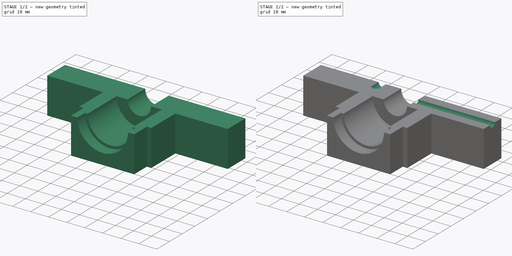
[diagram: build sequence overview — one tinted view per stage of 2, left to right]
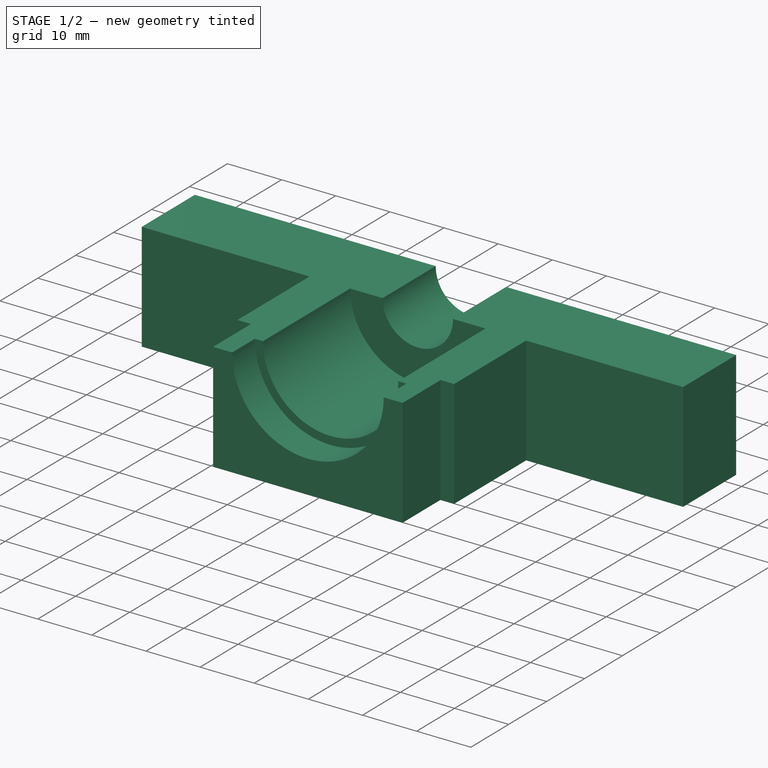
[diagram: stage 1 of 2 — iso view after this stage's code; geometry added in this stage tinted green]
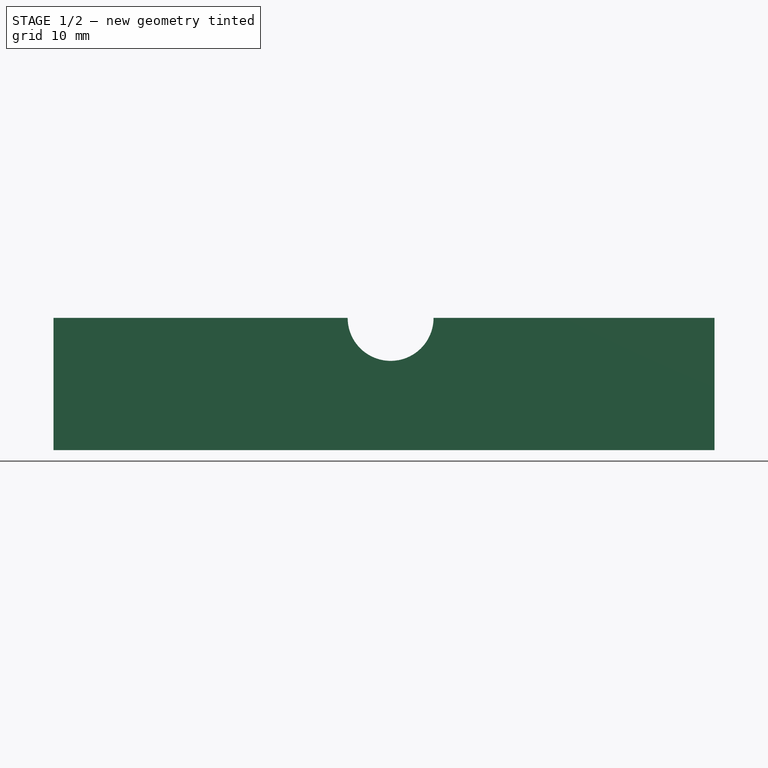
[diagram: stage 1 of 2 — front view after this stage's code; geometry added in this stage tinted green]
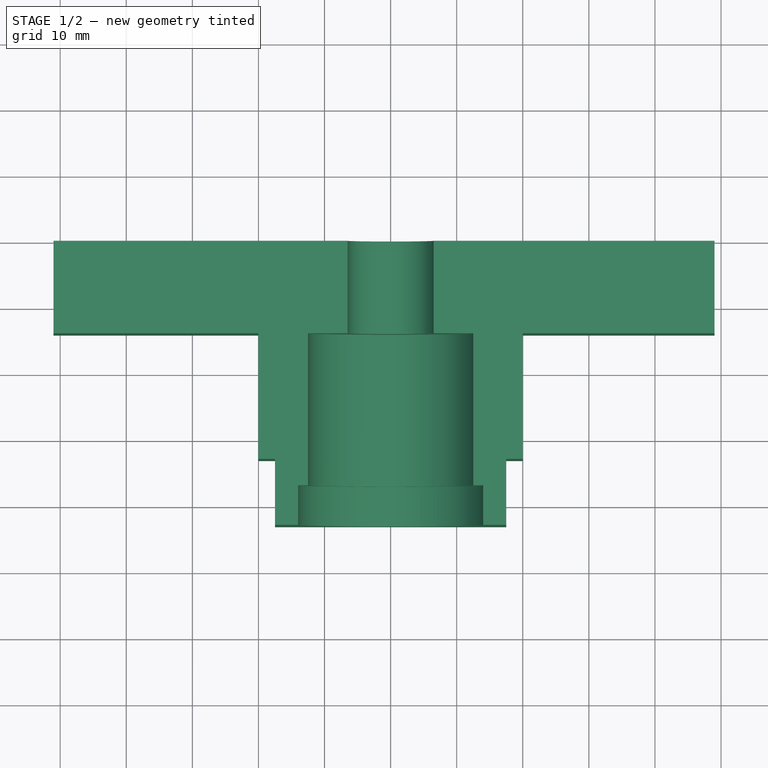
[diagram: stage 1 of 2 — top view after this stage's code; geometry added in this stage tinted green]
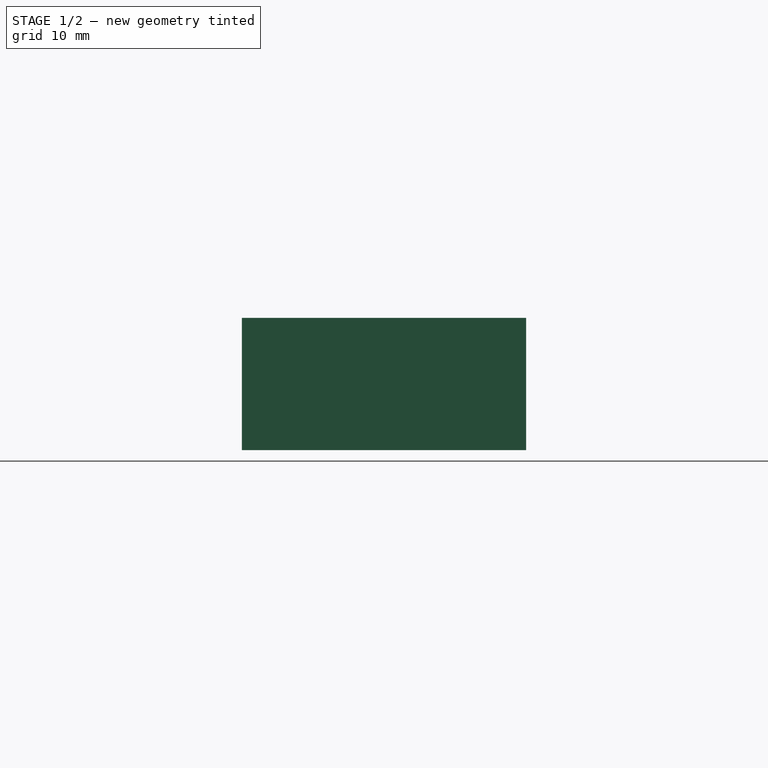
[diagram: stage 1 of 2 — right view after this stage's code; geometry added in this stage tinted green]
FCSTD DOCUMENT  (FreeCAD 0.18R14796 (Git))
Label: Exercise 2D -10
License: All rights reserved
LicenseURL: http://en.wikipedia.org/wiki/All_rights_reserved
objects: Sketcher::SketchObject×4, PartDesign::Groove×2, PartDesign::Pad×1, PartDesign::Pocket×1, PartDesign::Line×1, PartDesign::Body×1
note: 14 computed .brp shape members not serialized (recipe doc carries the construction recipe); baked Part::Feature solids carry a one-line shape summary decoded from their .brp

FEATURE [Sketcher::SketchObject] Sketch
  MapMode = 5
  Support = -> [XY_Plane]
  sketch-geometry (15):
    g0: LineSegment StartX=-51 StartY=0 StartZ=0 EndX=49 EndY=0 EndZ=0
    g1: LineSegment StartX=49 StartY=0 StartZ=0 EndX=49 EndY=-14 EndZ=0
    g2: LineSegment StartX=49 StartY=-14 StartZ=0 EndX=20 EndY=-14 EndZ=0
    g3: LineSegment StartX=20 StartY=-14 StartZ=0 EndX=20 EndY=-33 EndZ=0
    g4: LineSegment StartX=20 StartY=-33 StartZ=0 EndX=17.5 EndY=-33 EndZ=0
    g5: LineSegment StartX=17.5 StartY=-33 StartZ=0 EndX=17.5 EndY=-43 EndZ=0
    g6: LineSegment StartX=17.5 StartY=-43 StartZ=0 EndX=-17.5 EndY=-43 EndZ=0
    g7: LineSegment StartX=-17.5 StartY=-43 StartZ=0 EndX=-17.5 EndY=-33 EndZ=0
    g8: LineSegment StartX=-17.5 StartY=-33 StartZ=0 EndX=-20 EndY=-33 EndZ=0
    g9: LineSegment StartX=-20 StartY=-33 StartZ=0 EndX=-20 EndY=-14 EndZ=0
    g10: LineSegment StartX=-20 StartY=-14 StartZ=0 EndX=-51 EndY=-14 EndZ=0
    g11: LineSegment StartX=-51 StartY=-14 StartZ=0 EndX=-51 EndY=0 EndZ=0
    g12: LineSegment [constr] StartX=-20 StartY=-14 StartZ=0 EndX=20 EndY=-14 EndZ=0
    g13: LineSegment [constr] StartX=0 StartY=0 StartZ=0 EndX=0 EndY=-43 EndZ=0
    g14: LineSegment [constr] StartX=-17.5 StartY=-33 StartZ=0 EndX=17.5 EndY=-33 EndZ=0
  constraints (41):
    c: Horizontal(g0)
    c: Coincident(g0,g1)
    c: Vertical(g1)
    c: Coincident(g1,g2)
    c: Horizontal(g2)
    c: Coincident(g2,g3)
    c: Vertical(g3)
    c: Coincident(g3,g4)
    c: Horizontal(g4)
    c: Coincident(g4,g5)
    c: Vertical(g5)
    c: Coincident(g5,g6)
    c: Horizontal(g6)
    c: Coincident(g6,g7)
    c: Vertical(g7)
    c: Coincident(g7,g8)
    c: Horizontal(g8)
    c: Coincident(g8,g9)
    c: Vertical(g9)
    c: Coincident(g9,g10)
    c: Horizontal(g10)
    c: Coincident(g10,g11)
    c: Vertical(g11)
    c: Coincident(g0,g11)
    c: DistanceX(g0,g0) = 100
    c: Coincident(g12,g9)
    c: Coincident(g12,g2)
    c: Horizontal(g12)
    c: DistanceY(g11,g11) = 14
    c: DistanceX(g2,g2) = 29
    c: DistanceX(g8,g3) = 40
    c: DistanceX(g6,g6) = 35
    c: PointOnObject(g13,g0)
    c: Symmetric(g6,g6,g13)
    c: Symmetric(g2,g9,g13)
    c: Coincident(g13,g-1)
    c: Coincident(g14,g7)
    c: Coincident(g14,g4)
    c: Horizontal(g14)
    c: DistanceY(g3,g3) = 19
    c: DistanceY(g5,g5) = 10
FEATURE [PartDesign::Pad] Pad
  Length = 20
  Length2 = 100
  Profile = -> Sketch
  Refine = true
  Reversed = true
  Type = 0
FEATURE [Sketcher::SketchObject] Sketch001
  MapMode = 5
  Support = -> [XY_Plane]
  expr: Constraints[22] = 13 / 2
  expr: Constraints[21] = 25 / 2
  expr: Constraints[20] = 28 / 2
  sketch-geometry (8):
    g0: LineSegment StartX=0 StartY=0 StartZ=0 EndX=6.5 EndY=0 EndZ=0
    g1: LineSegment StartX=6.5 StartY=0 StartZ=0 EndX=6.5 EndY=-14 EndZ=0
    g2: LineSegment StartX=6.5 StartY=-14 StartZ=0 EndX=12.5 EndY=-14 EndZ=0
    g3: LineSegment StartX=12.5 StartY=-14 StartZ=0 EndX=12.5 EndY=-37 EndZ=0
    g4: LineSegment StartX=12.5 StartY=-37 StartZ=0 EndX=14 EndY=-37 EndZ=0
    g5: LineSegment StartX=14 StartY=-37 StartZ=0 EndX=14 EndY=-45 EndZ=0
    g6: LineSegment StartX=14 StartY=-45 StartZ=0 EndX=0 EndY=-45 EndZ=0
    g7: LineSegment StartX=0 StartY=-45 StartZ=0 EndX=0 EndY=0 EndZ=0
  constraints (23):
    c: Coincident(g-1,g0)
    c: Horizontal(g0)
    c: Coincident(g0,g1)
    c: Vertical(g1)
    c: Coincident(g1,g2)
    c: Horizontal(g2)
    c: Coincident(g2,g3)
    c: Vertical(g3)
    c: Coincident(g3,g4)
    c: Horizontal(g4)
    c: Coincident(g4,g5)
    c: Vertical(g5)
    c: Coincident(g5,g6)
    c: PointOnObject(g6,g-2)
    c: Horizontal(g6)
    c: Coincident(g6,g7)
    c: Coincident(g7,g0)
    c: DistanceY(g5,g5) = 8
    c: DistanceY(g3,g3) = 23
    c: DistanceY(g1,g1) = 14
    c: DistanceX(g6,g6) = 14
    c: DistanceX(g2) = 12.5
    c: DistanceX(g1) = 6.5
FEATURE [PartDesign::Groove] Groove
  Angle = 360
  Axis = (0,1,0)
  Base = (0,0,0)
  BaseFeature = -> Pad
  Profile = -> Sketch001
  ReferenceAxis = -> Sketch001 [V_Axis]
  Refine = true
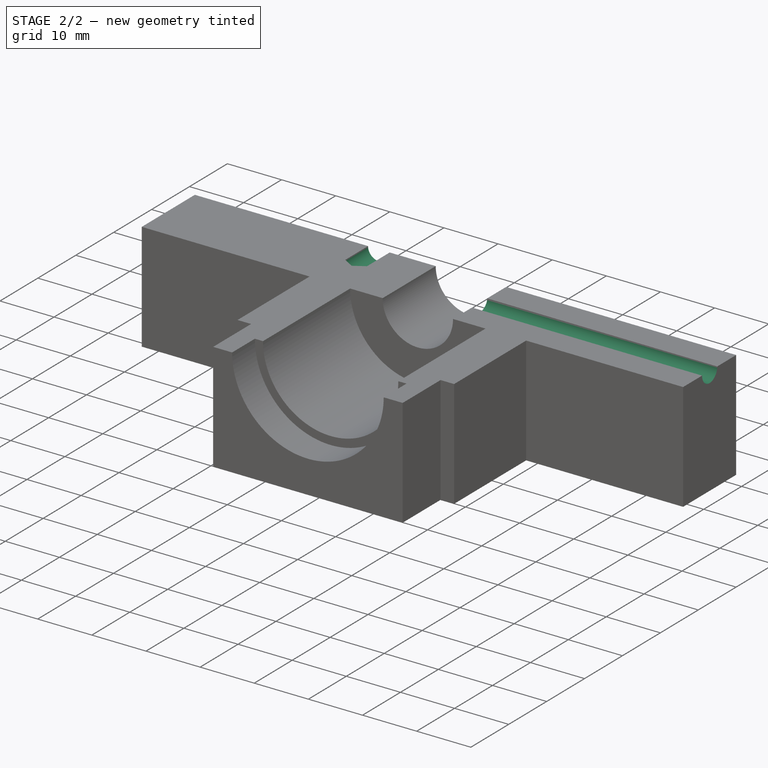
[diagram: stage 2 of 2 — iso view after this stage's code; geometry added in this stage tinted green]
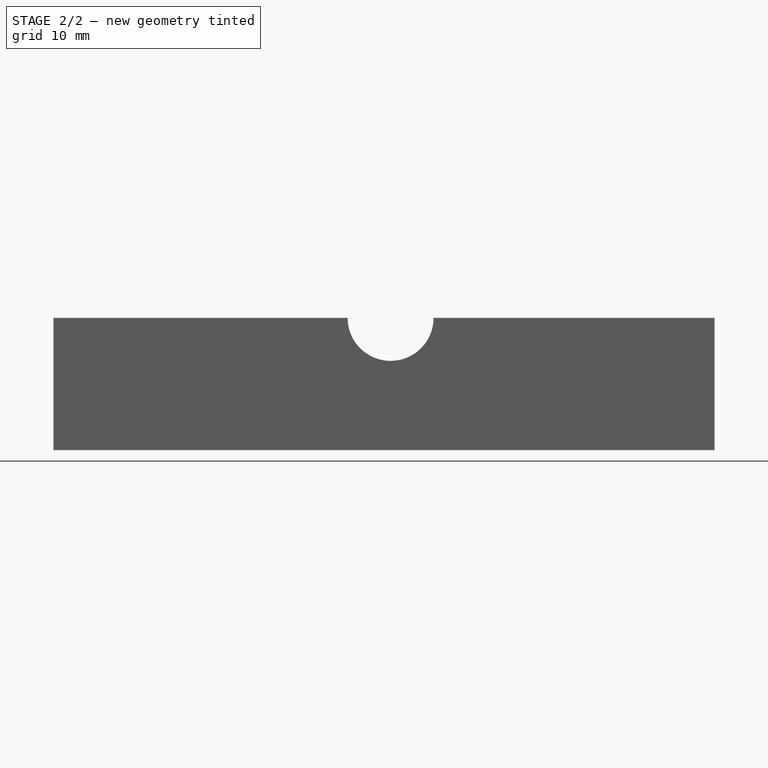
[diagram: stage 2 of 2 — front view after this stage's code; geometry added in this stage tinted green]
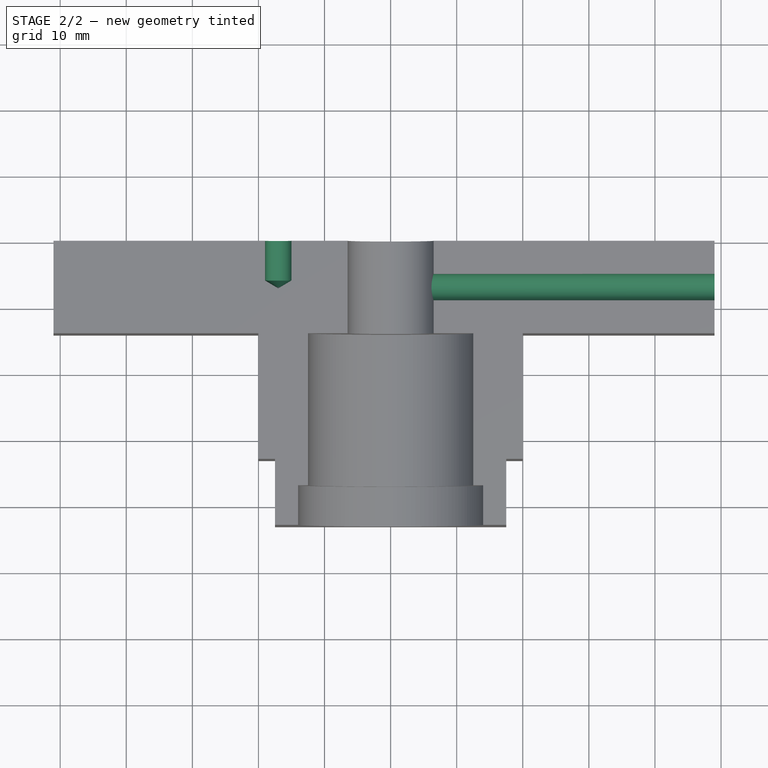
[diagram: stage 2 of 2 — top view after this stage's code; geometry added in this stage tinted green]
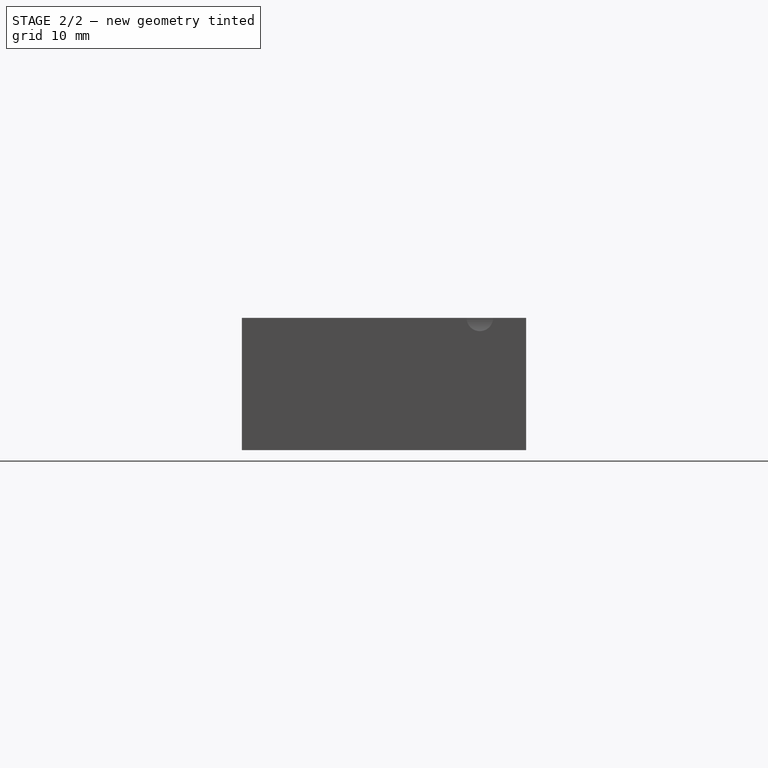
[diagram: stage 2 of 2 — right view after this stage's code; geometry added in this stage tinted green]
FEATURE [Sketcher::SketchObject] Sketch002
  MapMode = 5
  Placement = pos=(0,0,0) rot=(0.57735,0.57735,0.57735;2.0944rad)
  Support = -> [YZ_Plane]
  sketch-geometry (1):
    g0: Circle CenterX=-7 CenterY=0 CenterZ=0 NormalX=0 NormalY=0 NormalZ=1 AngleXU=0 Radius=2
  constraints (3):
    c: PointOnObject(g0,g-1)
    c: DistanceX(g0,g-1) = 7
    c: Diameter(g0) = 4
FEATURE [PartDesign::Pocket] Pocket
  BaseFeature = -> Groove
  Length = 50
  Length2 = 100
  Profile = -> Sketch002
  Refine = true
  Reversed = true
  Type = 0
FEATURE [PartDesign::Line] DatumLine
  AttacherType = Attacher::AttachEngineLine
  AttachmentOffset = pos=(-33,0,0) rot=(0,0,1;0rad)
  MapMode = 29
  Placement = pos=(-18,0,0) rot=(0,0.707107,0.707107;3.14159rad)
  Support = -> [Sketch]
FEATURE [Sketcher::SketchObject] Sketch003
  AttachmentOffset = pos=(-17,0,0) rot=(0,0,1;0rad)
  MapMode = 5
  Placement = pos=(-17,0,0) rot=(0,0,1;0rad)
  Support = -> [XY_Plane]
  expr: Constraints[10] = 118 / 2
  sketch-geometry (4):
    g0: LineSegment StartX=0 StartY=0 StartZ=0 EndX=2 EndY=0 EndZ=0
    g1: LineSegment StartX=2 StartY=0 StartZ=0 EndX=2 EndY=-6 EndZ=0
    g2: LineSegment StartX=2 StartY=-6 StartZ=0 EndX=0 EndY=-7.20172 EndZ=0
    g3: LineSegment StartX=0 StartY=-7.20172 StartZ=0 EndX=0 EndY=0 EndZ=0
  constraints (11):
    c: Horizontal(g0)
    c: Coincident(g0,g1)
    c: Vertical(g1)
    c: Coincident(g1,g2)
    c: PointOnObject(g2,g-2)
    c: Coincident(g0,g3)
    c: DistanceX(g0,g0) = 2
    c: DistanceY(g1,g1) = 6
    c: Coincident(g0,g-1)
    c: Coincident(g3,g2)
    c: Angle(g2,g3) = 1.02974
FEATURE [PartDesign::Groove] Groove001
  Angle = 360
  Axis = (0,1,0)
  Base = (-17,0,0)
  BaseFeature = -> Pocket
  Profile = -> Sketch003
  ReferenceAxis = -> Sketch003 [V_Axis]
  Refine = true
FEATURE [PartDesign::Body] Body
  Group = -> [Sketch,Pad,Sketch001,Groove,Sketch002,Pocket,DatumLine,Sketch003,Groove001]
  Origin = -> Origin
  Tip = -> Groove001
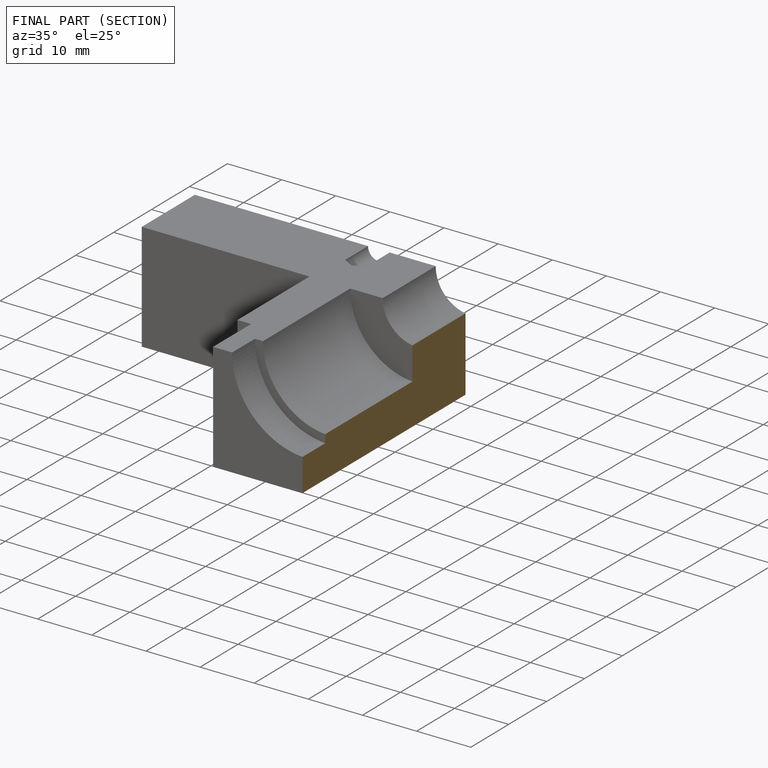
[diagram: finished part — half-section view (interior)]
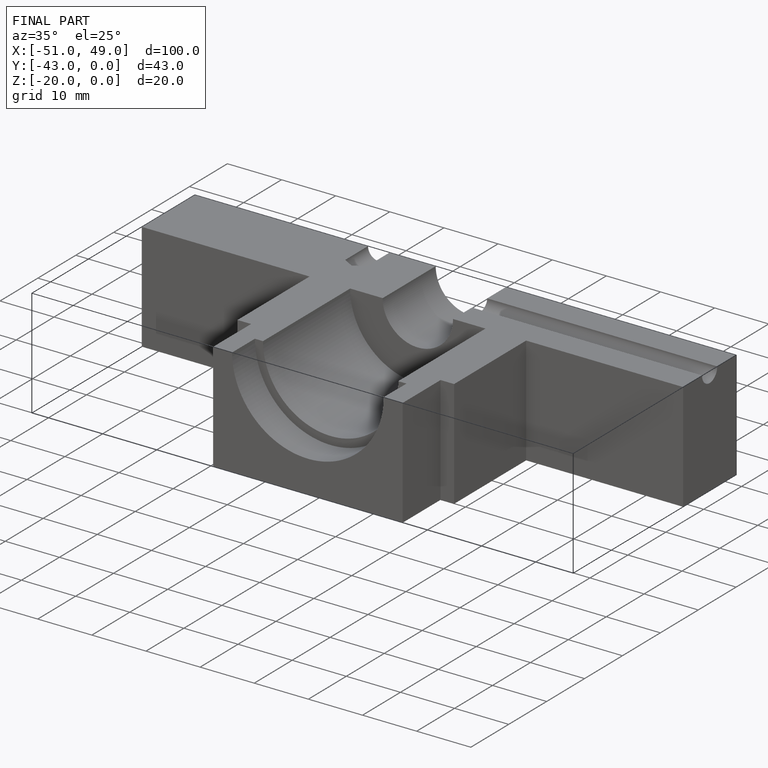
[diagram: finished part — iso view with bounding-box wireframe]
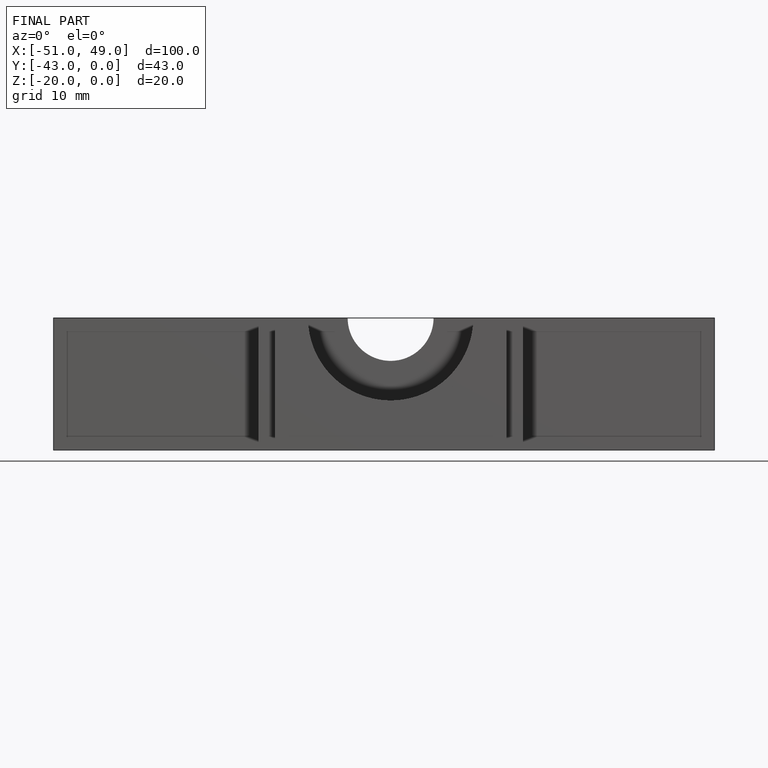
[diagram: finished part — front view with bounding-box wireframe]
